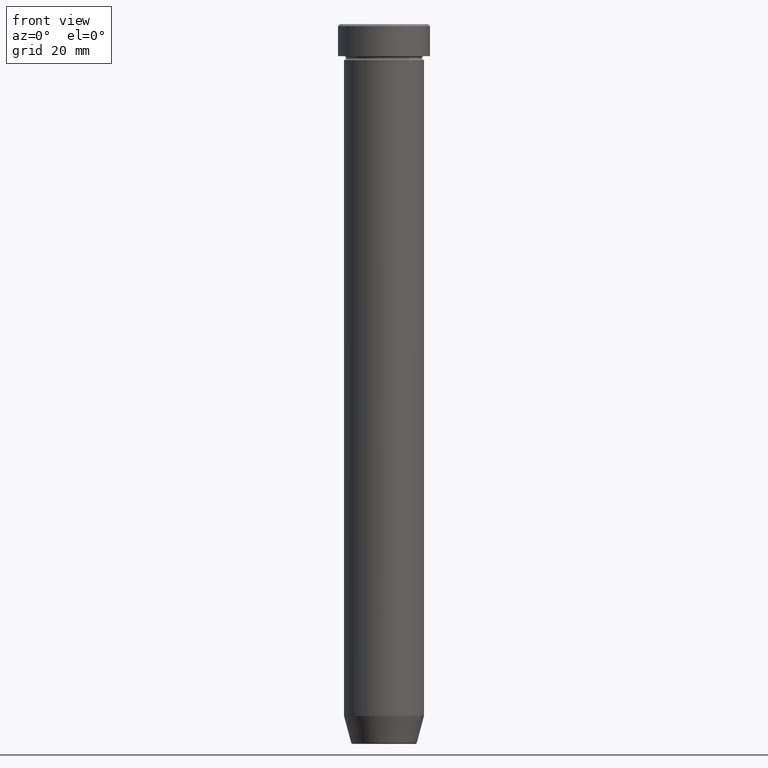
[diagram: clean part render]
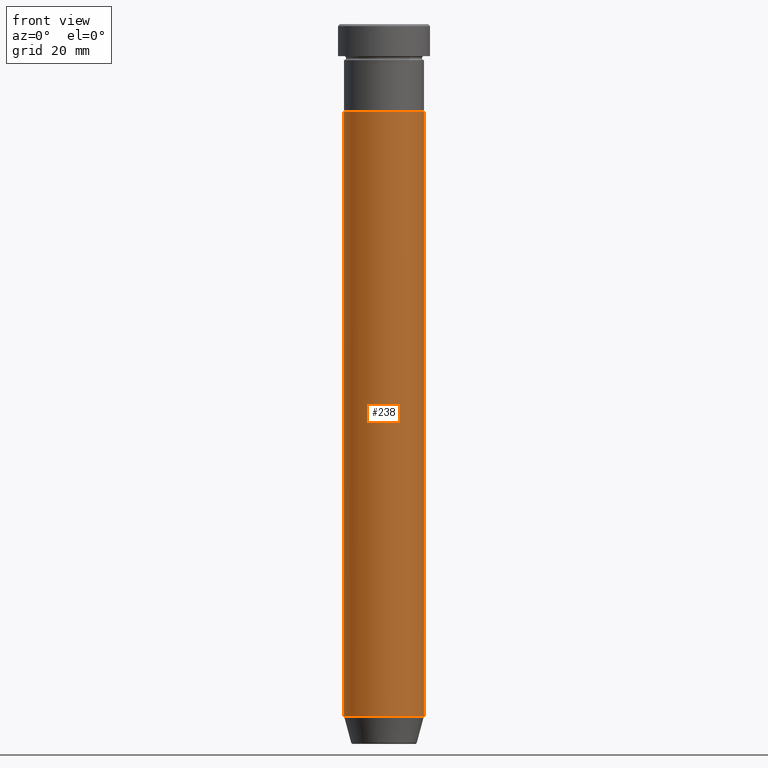
[diagram: same view with one face highlighted and labeled with its STEP entity id]
A machine part, front view. The second image highlights one B-rep face of the part: STEP entity #238.
In plain terms, the highlighted cylindrical surface (partial cylindrical patch) has radius 10 mm, axis along (-0, -0, 1).
Its self-contained STEP definition (entity closure, byte-faithful):
#5 = AXIS2_PLACEMENT_3D ( 'NONE', #19, #436, #329 ) ;
#13 = LINE ( 'NONE', #388, #554 ) ;
#17 = ORIENTED_EDGE ( 'NONE', *, *, #387, .T. ) ;
#19 = CARTESIAN_POINT ( 'NONE',  ( 0.000000000000000000, 0.000000000000000000, 0.000000000000000000 ) ) ;
#29 = CARTESIAN_POINT ( 'NONE',  ( 0.000000000000000000, 0.000000000000000000, -173.0000000000000000 ) ) ;
#33 = CIRCLE ( 'NONE', #217, 9.999999999999998224 ) ;
#42 = EDGE_CURVE ( 'NONE', #43, #160, #33, .T. ) ;
#43 = VERTEX_POINT ( 'NONE', #249 ) ;
#64 = DIRECTION ( 'NONE',  ( 1.000000000000000000, 0.000000000000000000, 0.000000000000000000 ) ) ;
#86 = CARTESIAN_POINT ( 'NONE',  ( -10.00000000000000000, 1.224646799147353256E-15, -22.00000000000000000 ) ) ;
#102 = ORIENTED_EDGE ( 'NONE', *, *, #227, .F. ) ;
#127 = DIRECTION ( 'NONE',  ( -0.000000000000000000, -0.000000000000000000, 1.000000000000000000 ) ) ;
#128 = DIRECTION ( 'NONE',  ( -0.000000000000000000, -0.000000000000000000, 1.000000000000000000 ) ) ;
#160 = VERTEX_POINT ( 'NONE', #175 ) ;
#162 = DIRECTION ( 'NONE',  ( -0.000000000000000000, -0.000000000000000000, 1.000000000000000000 ) ) ;
#170 = AXIS2_PLACEMENT_3D ( 'NONE', #452, #442, #574 ) ;
#175 = CARTESIAN_POINT ( 'NONE',  ( 9.999999999999998224, 0.000000000000000000, -173.0000000000000000 ) ) ;
#217 = AXIS2_PLACEMENT_3D ( 'NONE', #29, #162, #64 ) ;
#227 = EDGE_CURVE ( 'NONE', #43, #516, #599, .T. ) ;
#238 = ADVANCED_FACE ( 'NONE', ( #496 ), #478, .T. ) ;
#249 = CARTESIAN_POINT ( 'NONE',  ( -9.999999999999998224, 1.224646799147353059E-15, -173.0000000000000000 ) ) ;
#256 = VECTOR ( 'NONE', #127, 1000.000000000000000 ) ;
#261 = ORIENTED_EDGE ( 'NONE', *, *, #533, .F. ) ;
#329 = DIRECTION ( 'NONE',  ( 1.000000000000000000, 0.000000000000000000, 0.000000000000000000 ) ) ;
#368 = CIRCLE ( 'NONE', #170, 10.00000000000000000 ) ;
#374 = CARTESIAN_POINT ( 'NONE',  ( -9.999999999999998224, 1.224646799147353059E-15, 0.000000000000000000 ) ) ;
#383 = VERTEX_POINT ( 'NONE', #463 ) ;
#387 = EDGE_CURVE ( 'NONE', #160, #383, #13, .T. ) ;
#388 = CARTESIAN_POINT ( 'NONE',  ( 9.999999999999998224, 0.000000000000000000, 0.000000000000000000 ) ) ;
#424 = EDGE_LOOP ( 'NONE', ( #102, #557, #17, #261 ) ) ;
#436 = DIRECTION ( 'NONE',  ( -0.000000000000000000, -0.000000000000000000, 1.000000000000000000 ) ) ;
#442 = DIRECTION ( 'NONE',  ( -0.000000000000000000, -0.000000000000000000, 1.000000000000000000 ) ) ;
#452 = CARTESIAN_POINT ( 'NONE',  ( 0.000000000000000000, 0.000000000000000000, -22.00000000000000000 ) ) ;
#463 = CARTESIAN_POINT ( 'NONE',  ( 10.00000000000000000, 0.000000000000000000, -22.00000000000000000 ) ) ;
#478 = CYLINDRICAL_SURFACE ( 'NONE', #5, 9.999999999999998224 ) ;
#496 = FACE_OUTER_BOUND ( 'NONE', #424, .T. ) ;
#516 = VERTEX_POINT ( 'NONE', #86 ) ;
#533 = EDGE_CURVE ( 'NONE', #516, #383, #368, .T. ) ;
#554 = VECTOR ( 'NONE', #128, 1000.000000000000000 ) ;
#557 = ORIENTED_EDGE ( 'NONE', *, *, #42, .T. ) ;
#574 = DIRECTION ( 'NONE',  ( 1.000000000000000000, 0.000000000000000000, 0.000000000000000000 ) ) ;
#599 = LINE ( 'NONE', #374, #256 ) ;